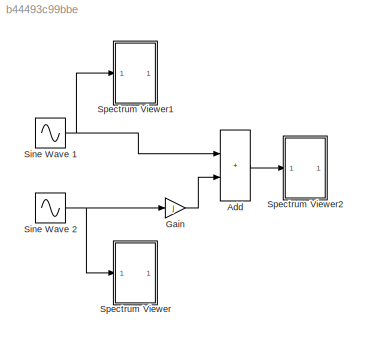
MODEL slx_b44493c99bbe
KIND model
CONFIG AbsTol = auto
CONFIG EnableMultiTasking = off
CONFIG FixedStep = auto
CONFIG MaxStep = auto
CONFIG MinStep = auto
CONFIG RelTol = 1e-3
CONFIG SampleTimeConstraint = Unconstrained
CONFIG SolverName = VariableStepAuto
CONFIG StartTime = 0.0
CONFIG StopTime = 2
BLOCK [Sum] Add
  IconShape = rectangular
BLOCK [Gain] Gain
  Gain = j
BLOCK [Sin] Sine Wave 1
  Frequency = 2*pi*(22000)
  Phase = pi/2
  SampleTime = 0
BLOCK [Sin] Sine Wave 2
  Frequency = 2*pi*3000
  Phase = 4
  SampleTime = 0
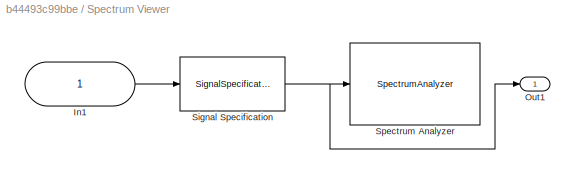
BLOCK [SubSystem] Spectrum Viewer
BLOCK [Inport] Spectrum Viewer/In1
BLOCK [Outport] Spectrum Viewer/Out1
BLOCK [SignalSpecification] Spectrum Viewer/Signal Specification
  SampleTime = 1/16e4
BLOCK [SpectrumAnalyzer] Spectrum Viewer/Spectrum Analyzer
  AllowFFTLengthLessThanSamplesPerUpdate = on
  AveragingMethod = Running
  AxesScaling = Manual
  DefaultConfigurationName = spbscopes.SpectrumAnalyzerBlockCfg
  FrequencyInputRBWFromPort = 0
  FrequencyInputRBWPort = 0
  FrequencyResolutionMethod = Window length
  FrequencySpan = Span and center frequency
  FrequencyVectorFromPort = 0
  FrequencyVectorPort = 0
  GraphicalSettings = {"GraphicalSettings":{"Style":{"BackgroundColor":[0.12941176470588237,0.12941176470588237,0.12941176470588237],"AxesColor":[0,0,0],"LabelsColor":[0.6862745098039216,0.6862745098039216,0.6862745098039216],"PreserveColors":false,"Visible":[true],"LineStyle":["-"],"LineWidth":[1.5],"BarWidth":[0.9],"LineColor":[[1,0.9098039215686274,0.39215686274509803]],"LineFaceAlpha":[1],"LineEdgeAlpha":[1],"Marke...<+945ch>  <repeated x3 — deduplicated; at blocks: Spectrum Analyzer>
  IsFrequencyInputMode = 0
  Method = Welch
  OverlapPercent = 6.25
  ScopeFrameLocation = window
  ScopeSpecificationString = spbscopes.SpectrumAnalyzerBlockCfg('CurrentConfiguration', extmgr.ConfigurationSet(extmgr.Configuration('Core','General UI',true),extmgr.Configuration('Core','Source UI',true),extmgr.Configuration('Sources','WiredSimulink',true),extmgr.Configuration('Sources','SimulinkEvent',false),extmgr.Configuration('Sources','Simulink',false),extmgr.Configuration('Sources','File',false),extmgr.Configuration('S...<+2845ch>  <repeated x3 — deduplicated; at blocks: Spectrum Analyzer>
  SelectedToolstripTab = spectrumAnalyzerToolstrip.spectrumTab
  Span = 160000
  SpectralAverages = 200
  SpectrumUnits = Watts
  StartFrequency = -80000
  StopFrequency = 80000
  WasSavedAsWebScope = on
  WindowPosition = [1659.000000,375.000000,800.000000,782.000000,]
  YLimits = [-0.019423423539448113,0.07466740249489141]
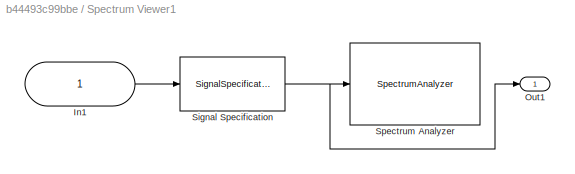
BLOCK [SubSystem] Spectrum Viewer1
BLOCK [Inport] Spectrum Viewer1/In1
BLOCK [Outport] Spectrum Viewer1/Out1
BLOCK [SignalSpecification] Spectrum Viewer1/Signal Specification
  SampleTime = 1/16e4
BLOCK [SpectrumAnalyzer] Spectrum Viewer1/Spectrum Analyzer
  AllowFFTLengthLessThanSamplesPerUpdate = on
  AveragingMethod = Running
  AxesScaling = Manual
  DefaultConfigurationName = spbscopes.SpectrumAnalyzerBlockCfg
  FrequencyInputRBWFromPort = 0
  FrequencyInputRBWPort = 0
  FrequencyResolutionMethod = Window length
  FrequencySpan = Span and center frequency
  FrequencyVectorFromPort = 0
  FrequencyVectorPort = 0
  IsFrequencyInputMode = 0
  Method = Welch
  OverlapPercent = 6.25
  ScopeFrameLocation = window
  SelectedToolstripTab = spectrumAnalyzerToolstrip.spectrumTab
  Span = 160000
  SpectralAverages = 200
  SpectrumUnits = Watts
  StartFrequency = -80000
  StopFrequency = 80000
  WasSavedAsWebScope = on
  WindowPosition = [860.000000,441.000000,800.000000,782.000000,]
  YLimits = [-0.11013968516007862,0.44594244974112696]
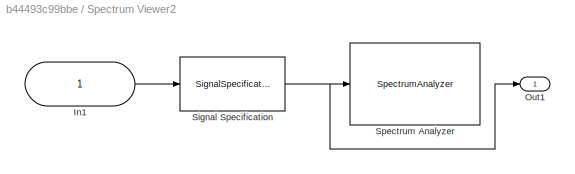
BLOCK [SubSystem] Spectrum Viewer2
BLOCK [Inport] Spectrum Viewer2/In1
BLOCK [Outport] Spectrum Viewer2/Out1
BLOCK [SignalSpecification] Spectrum Viewer2/Signal Specification
  SampleTime = 1/16e4
BLOCK [SpectrumAnalyzer] Spectrum Viewer2/Spectrum Analyzer
  AllowFFTLengthLessThanSamplesPerUpdate = on
  AveragingMethod = Running
  AxesScaling = Manual
  DefaultConfigurationName = spbscopes.SpectrumAnalyzerBlockCfg
  FrequencyInputRBWFromPort = 0
  FrequencyInputRBWPort = 0
  FrequencyResolutionMethod = Window length
  FrequencySpan = Span and center frequency
  FrequencyVectorFromPort = 0
  FrequencyVectorPort = 0
  IsFrequencyInputMode = 0
  Method = Welch
  OverlapPercent = 6.25
  ScopeFrameLocation = window
  SelectedToolstripTab = spectrumAnalyzerToolstrip.spectrumTab
  Span = 160000
  SpectralAverages = 200
  SpectrumUnits = Watts
  StartFrequency = -80000
  StopFrequency = 80000
  WasSavedAsWebScope = on
  WindowPosition = [465.000000,423.000000,800.000000,782.000000,]
  YLimits = [-0.10809447526868737,1.203408955641157]
LINE Add:1 -> Spectrum Viewer2:1
LINE Gain:1 -> Add:2
NET Sine Wave 1:1 -> Add:1, Spectrum Viewer1:1
NET Sine Wave 2:1 -> Gain:1, Spectrum Viewer:1
LINE Spectrum Viewer/In1:1 -> Spectrum Viewer/Signal Specification:1
NET Spectrum Viewer/Signal Specification:1 -> Spectrum Viewer/Out1:1, Spectrum Viewer/Spectrum Analyzer:1
LINE Spectrum Viewer1/In1:1 -> Spectrum Viewer1/Signal Specification:1
NET Spectrum Viewer1/Signal Specification:1 -> Spectrum Viewer1/Out1:1, Spectrum Viewer1/Spectrum Analyzer:1
LINE Spectrum Viewer2/In1:1 -> Spectrum Viewer2/Signal Specification:1
NET Spectrum Viewer2/Signal Specification:1 -> Spectrum Viewer2/Out1:1, Spectrum Viewer2/Spectrum Analyzer:1
note: NET lines group one-source signal fan-out (src -> all destinations, sorted); 1:1 wires keep LINE
